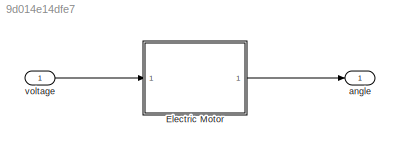
MODEL slx_9d014e14dfe7
KIND model
CONFIG AbsTol = auto
CONFIG EnableMultiTasking = off
CONFIG FixedStep = 0.001
CONFIG MaxStep = auto
CONFIG MinStep = auto
CONFIG RelTol = 1e-3
CONFIG SampleTimeConstraint = Unconstrained
CONFIG Solver = FixedStepAuto
CONFIG SolverName = FixedStepAuto
CONFIG StartTime = 0.0
CONFIG StopTime = 10.0
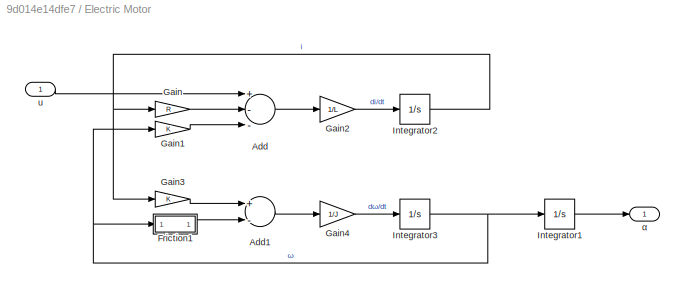
BLOCK [SubSystem] Electric Motor
  Ports = [1, 1]
  RequestExecContextInheritance = off
  Variant = off
BLOCK [Sum] Electric Motor/Add
  InputSameDT = off
  Inputs = +--
  OutDataTypeStr = Inherit: Inherit via internal rule
  Ports = [3, 1]
  SaturateOnIntegerOverflow = off
BLOCK [Sum] Electric Motor/Add1
  InputSameDT = off
  Inputs = +-
  OutDataTypeStr = Inherit: Inherit via internal rule
  Ports = [2, 1]
  SaturateOnIntegerOverflow = off
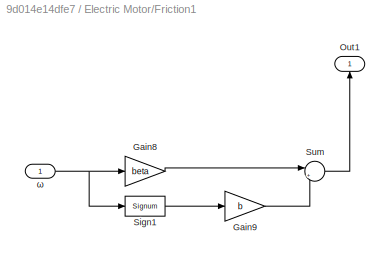
BLOCK [SubSystem] Electric Motor/Friction1
  Ports = [1, 1]
  RequestExecContextInheritance = off
  Variant = off
BLOCK [Gain] Electric Motor/Friction1/Gain8
  Gain = beta
  OutDataTypeStr = Inherit: Inherit via internal rule
  ParamDataTypeStr = Inherit: Inherit via internal rule
  SaturateOnIntegerOverflow = off
BLOCK [Gain] Electric Motor/Friction1/Gain9
  Gain = b
  OutDataTypeStr = Inherit: Inherit via internal rule
  ParamDataTypeStr = Inherit: Inherit via internal rule
  SaturateOnIntegerOverflow = off
BLOCK [Outport] Electric Motor/Friction1/Out1
  IconDisplay = Port number
BLOCK [Signum] Electric Motor/Friction1/Sign1
  ZeroCross = off
BLOCK [Sum] Electric Motor/Friction1/Sum
  IconShape = round
  InputSameDT = off
  Inputs = |++
  OutDataTypeStr = Inherit: Inherit via internal rule
  Ports = [2, 1]
  SaturateOnIntegerOverflow = off
BLOCK [Inport] Electric Motor/Friction1/ω
  IconDisplay = Port number
BLOCK [Gain] Electric Motor/Gain
  Gain = R
  OutDataTypeStr = Inherit: Inherit via internal rule
  ParamDataTypeStr = Inherit: Inherit via internal rule
  SaturateOnIntegerOverflow = off
BLOCK [Gain] Electric Motor/Gain1
  Gain = K
  OutDataTypeStr = Inherit: Inherit via internal rule
  ParamDataTypeStr = Inherit: Inherit via internal rule
  SaturateOnIntegerOverflow = off
BLOCK [Gain] Electric Motor/Gain2
  Gain = 1/L
  OutDataTypeStr = Inherit: Inherit via internal rule
  ParamDataTypeStr = Inherit: Inherit via internal rule
  SaturateOnIntegerOverflow = off
BLOCK [Gain] Electric Motor/Gain3
  Gain = K
  OutDataTypeStr = Inherit: Inherit via internal rule
  ParamDataTypeStr = Inherit: Inherit via internal rule
  SaturateOnIntegerOverflow = off
BLOCK [Gain] Electric Motor/Gain4
  Gain = 1/J
  OutDataTypeStr = Inherit: Inherit via internal rule
  ParamDataTypeStr = Inherit: Inherit via internal rule
  SaturateOnIntegerOverflow = off
BLOCK [Integrator] Electric Motor/Integrator1
  Ports = [1, 1]
BLOCK [Integrator] Electric Motor/Integrator2
  Ports = [1, 1]
BLOCK [Integrator] Electric Motor/Integrator3
  Ports = [1, 1]
BLOCK [Inport] Electric Motor/u
  IconDisplay = Port number
BLOCK [Outport] Electric Motor/α
  IconDisplay = Port number
BLOCK [Outport] angle
  IconDisplay = Port number
BLOCK [Inport] voltage
  IconDisplay = Port number
LINE Electric Motor/Add1:1 -> Electric Motor/Gain4:1
LINE Electric Motor/Add:1 -> Electric Motor/Gain2:1
LINE Electric Motor/Friction1/Gain8:1 -> Electric Motor/Friction1/Sum:1
LINE Electric Motor/Friction1/Gain9:1 -> Electric Motor/Friction1/Sum:2
LINE Electric Motor/Friction1/Sign1:1 -> Electric Motor/Friction1/Gain9:1
LINE Electric Motor/Friction1/Sum:1 -> Electric Motor/Friction1/Out1:1
NET Electric Motor/Friction1/ω:1 -> Electric Motor/Friction1/Gain8:1, Electric Motor/Friction1/Sign1:1
LINE Electric Motor/Friction1:1 -> Electric Motor/Add1:2
LINE Electric Motor/Gain1:1 -> Electric Motor/Add:3
LINE Electric Motor/Gain2:1 -> Electric Motor/Integrator2:1
LINE Electric Motor/Gain3:1 -> Electric Motor/Add1:1
LINE Electric Motor/Gain4:1 -> Electric Motor/Integrator3:1
LINE Electric Motor/Gain:1 -> Electric Motor/Add:2
LINE Electric Motor/Integrator1:1 -> Electric Motor/α:1
NET Electric Motor/Integrator2:1 -> Electric Motor/Gain3:1, Electric Motor/Gain:1
NET Electric Motor/Integrator3:1 -> Electric Motor/Friction1:1, Electric Motor/Gain1:1, Electric Motor/Integrator1:1
LINE Electric Motor/u:1 -> Electric Motor/Add:1
LINE Electric Motor:1 -> angle:1
LINE voltage:1 -> Electric Motor:1
note: NET lines group one-source signal fan-out (src -> all destinations, sorted); 1:1 wires keep LINE
